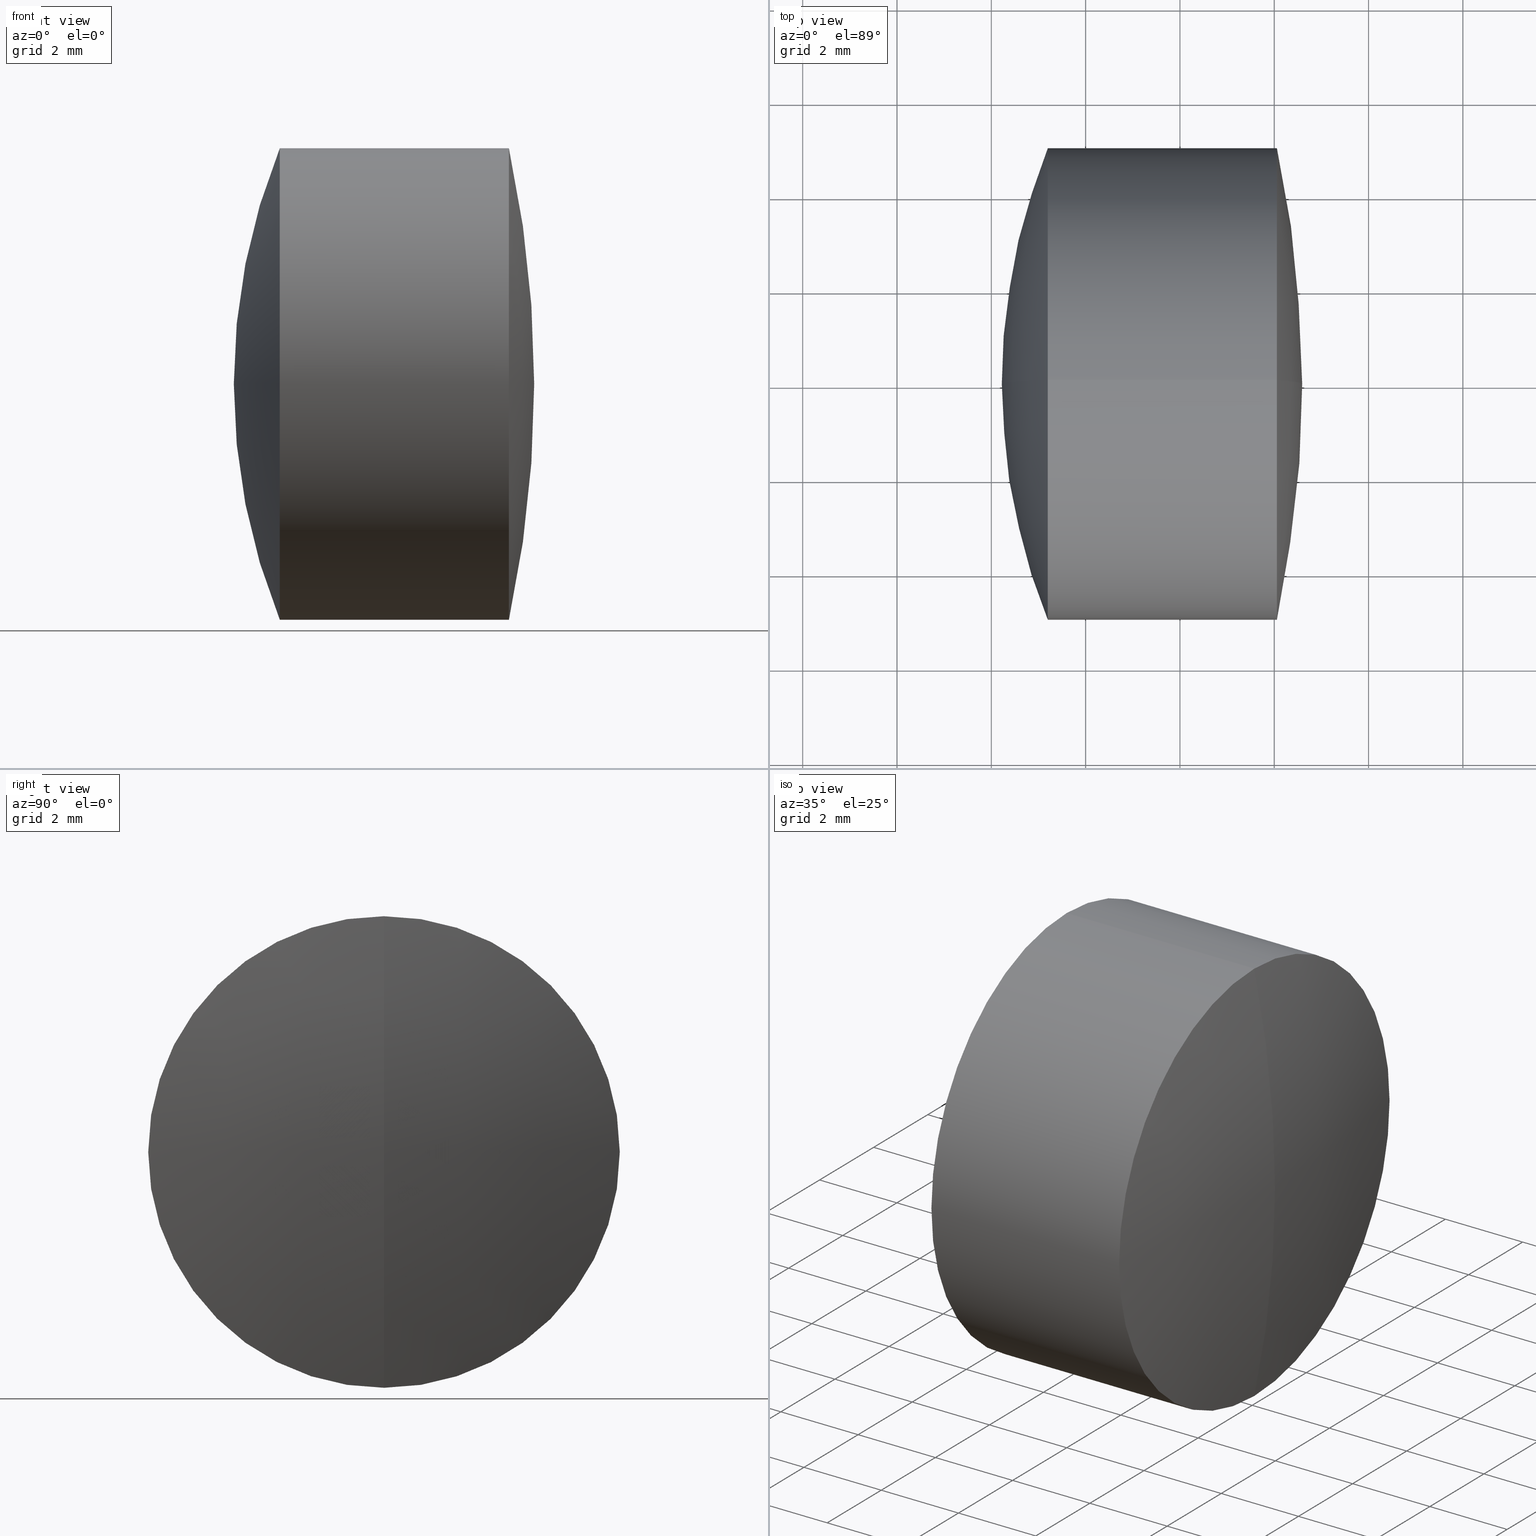
[diagram: canonical four-view strip — front | top / right | iso, engineering-drawing reading convention]
A machine part, canonical four-view strip (front | top / right | iso — engineering-drawing reading convention). The complete STEP part file that produces these views, byte-faithful:
ISO-10303-21;
HEADER;
FILE_DESCRIPTION (( 'STEP AP214' ),
    '1' );
FILE_NAME ('145019.STEP',
    '2019-05-10T06:04:11',
    ( 'user' ),
    ( '΢���й�' ),
    'SwSTEP 2.0',
    'SolidWorks 2016',
    '' );
FILE_SCHEMA (( 'AUTOMOTIVE_DESIGN' ));
ENDSEC;

DATA;
#1 =( NAMED_UNIT ( * ) PLANE_ANGLE_UNIT ( ) SI_UNIT ( $, .RADIAN. ) );
#2 = ADVANCED_FACE ( 'NONE', ( #121 ), #147, .T. ) ;
#3 = CIRCLE ( 'NONE', #311, 5.000000000000000000 ) ;
#4 = ORIENTED_EDGE ( 'NONE', *, *, #92, .F. ) ;
#5 = DIRECTION ( 'NONE',  ( -1.000000000000000000, -0.0000000000000000000, -0.0000000000000000000 ) ) ;
#6 = ADVANCED_FACE ( 'NONE', ( #63 ), #319, .T. ) ;
#7 = DIRECTION ( 'NONE',  ( 0.0000000000000000000, 0.0000000000000000000, 1.000000000000000000 ) ) ;
#8 = SPHERICAL_SURFACE ( 'NONE', #330, 13.30299999999999900 ) ;
#9 = AXIS2_PLACEMENT_3D ( 'NONE', #10, #87, #328 ) ;
#10 = CARTESIAN_POINT ( 'NONE',  ( -18.99342932123091600, 0.0000000000000000000, 0.0000000000000000000 ) ) ;
#11 = ORIENTED_EDGE ( 'NONE', *, *, #317, .T. ) ;
#12 = COLOUR_RGB ( '',1.000000000000000000, 1.000000000000000000, 1.000000000000000000 ) ;
#13 = MANIFOLD_SOLID_BREP ( '��ת1', #125 ) ;
#14 = DIRECTION ( 'NONE',  ( 0.0000000000000000000, 0.0000000000000000000, 1.000000000000000000 ) ) ;
#15 = EDGE_LOOP ( 'NONE', ( #143, #118, #308 ) ) ;
#16 = CARTESIAN_POINT ( 'NONE',  ( 2.192570678769084800, 0.0000000000000000000, 6.492242437520216100E-016 ) ) ;
#17 = ORIENTED_EDGE ( 'NONE', *, *, #332, .F. ) ;
#18 = LINE ( 'NONE', #128, #74 ) ;
#19 = ORIENTED_EDGE ( 'NONE', *, *, #345, .F. ) ;
#20 = EDGE_CURVE ( 'NONE', #73, #54, #338, .T. ) ;
#21 = ADVANCED_FACE ( 'NONE', ( #253 ), #104, .F. ) ;
#22 = ORIENTED_EDGE ( 'NONE', *, *, #145, .F. ) ;
#23 = CARTESIAN_POINT ( 'NONE',  ( -18.99342932123091600, 0.0000000000000000000, 0.0000000000000000000 ) ) ;
#24 = VERTEX_POINT ( 'NONE', #16 ) ;
#25 =( GEOMETRIC_REPRESENTATION_CONTEXT ( 3 ) GLOBAL_UNCERTAINTY_ASSIGNED_CONTEXT ( ( #267 ) ) GLOBAL_UNIT_ASSIGNED_CONTEXT ( ( #47, #75, #130 ) ) REPRESENTATION_CONTEXT ( 'NONE', 'WORKASPACE' ) );
#26 = CIRCLE ( 'NONE', #223, 4.999999999999997300 ) ;
#27 = CARTESIAN_POINT ( 'NONE',  ( 0.6409706677806791300, 0.0000000000000000000, 0.0000000000000000000 ) ) ;
#28 = CARTESIAN_POINT ( 'NONE',  ( -0.5519199926577972300, 0.0000000000000000000, 0.0000000000000000000 ) ) ;
#29 = STYLED_ITEM ( 'NONE', ( #190 ), #13 ) ;
#30 = UNCERTAINTY_MEASURE_WITH_UNIT (LENGTH_MEASURE( 1.000000000000000100E-005 ), #154, 'distance_accuracy_value', 'NONE');
#31 = CARTESIAN_POINT ( 'NONE',  ( -0.8020328596320403000, 0.0000000000000000000, 0.0000000000000000000 ) ) ;
#32 = ORIENTED_EDGE ( 'NONE', *, *, #113, .T. ) ;
#33 = CIRCLE ( 'NONE', #228, 13.30299999999999900 ) ;
#34 = DIRECTION ( 'NONE',  ( 0.0000000000000000000, 0.0000000000000000000, -1.000000000000000000 ) ) ;
#35 = CARTESIAN_POINT ( 'NONE',  ( -0.8020328596320411800, 6.123233995736764300E-016, -4.999999999999999100 ) ) ;
#36 = VERTEX_POINT ( 'NONE', #93 ) ;
#37 = EDGE_CURVE ( 'NONE', #24, #296, #290, .T. ) ;
#38 = SPHERICAL_SURFACE ( 'NONE', #252, 8.832000000000000700 ) ;
#39 = ORIENTED_EDGE ( 'NONE', *, *, #113, .F. ) ;
#40 = PRESENTATION_LAYER_ASSIGNMENT (  '', '', ( #29 ) ) ;
#41 =( NAMED_UNIT ( * ) PLANE_ANGLE_UNIT ( ) SI_UNIT ( $, .RADIAN. ) );
#42 = ADVANCED_FACE ( 'NONE', ( #114 ), #166, .T. ) ;
#43 = VERTEX_POINT ( 'NONE', #213 ) ;
#44 = DIRECTION ( 'NONE',  ( 0.0000000000000000000, -1.224646799147353200E-016, 1.000000000000000000 ) ) ;
#45 = EDGE_LOOP ( 'NONE', ( #80, #182, #167, #17 ) ) ;
#46 = CARTESIAN_POINT ( 'NONE',  ( 4.056503346783539000, 0.0000000000000000000, 0.0000000000000000000 ) ) ;
#47 =( LENGTH_UNIT ( ) NAMED_UNIT ( * ) SI_UNIT ( .MILLI., .METRE. ) );
#48 =( NAMED_UNIT ( * ) SI_UNIT ( $, .STERADIAN. ) SOLID_ANGLE_UNIT ( ) );
#49 = DIRECTION ( 'NONE',  ( 0.0000000000000000000, 0.0000000000000000000, 1.000000000000000000 ) ) ;
#50 = DIRECTION ( 'NONE',  ( 0.0000000000000000000, 1.000000000000000000, 0.0000000000000000000 ) ) ;
#51 = CARTESIAN_POINT ( 'NONE',  ( -9.702612178336682500, 0.0000000000000000000, 0.0000000000000000000 ) ) ;
#52 = CYLINDRICAL_SURFACE ( 'NONE', #275, 4.999999999999998200 ) ;
#53 = DIRECTION ( 'NONE',  ( 0.0000000000000000000, -1.224646799147353200E-016, 1.000000000000000000 ) ) ;
#54 = VERTEX_POINT ( 'NONE', #35 ) ;
#55 = DIRECTION ( 'NONE',  ( 0.0000000000000000000, 0.0000000000000000000, 1.000000000000000000 ) ) ;
#56 = ADVANCED_FACE ( 'NONE', ( #241 ), #84, .T. ) ;
#57 = CARTESIAN_POINT ( 'NONE',  ( 11.52557067876908700, 0.0000000000000000000, -4.606281676806371000E-016 ) ) ;
#58 = AXIS2_PLACEMENT_3D ( 'NONE', #60, #116, #14 ) ;
#59 = CARTESIAN_POINT ( 'NONE',  ( -6.639429321230914600, 0.0000000000000000000, 1.084202172485504400E-016 ) ) ;
#60 = CARTESIAN_POINT ( 'NONE',  ( -6.639429321230914600, 0.0000000000000000000, 1.084202172485504400E-016 ) ) ;
#61 = FACE_OUTER_BOUND ( 'NONE', #155, .T. ) ;
#62 = EDGE_LOOP ( 'NONE', ( #39, #96, #247 ) ) ;
#63 = FACE_OUTER_BOUND ( 'NONE', #142, .T. ) ;
#64 = VECTOR ( 'NONE', #289, 1000.000000000000000 ) ;
#65 = ORIENTED_EDGE ( 'NONE', *, *, #170, .F. ) ;
#66 = PRESENTATION_STYLE_ASSIGNMENT (( #321 ) ) ;
#67 = CIRCLE ( 'NONE', #286, 5.000000000000000000 ) ;
#68 = DIRECTION ( 'NONE',  ( 0.0000000000000000000, 0.0000000000000000000, 1.000000000000000000 ) ) ;
#69 =( GEOMETRIC_REPRESENTATION_CONTEXT ( 3 ) GLOBAL_UNCERTAINTY_ASSIGNED_CONTEXT ( ( #79 ) ) GLOBAL_UNIT_ASSIGNED_CONTEXT ( ( #270, #41, #208 ) ) REPRESENTATION_CONTEXT ( 'NONE', 'WORKASPACE' ) );
#70 = DIRECTION ( 'NONE',  ( 0.0000000000000000000, 0.0000000000000000000, 1.000000000000000000 ) ) ;
#71 = CARTESIAN_POINT ( 'NONE',  ( 11.52557067876908700, 0.0000000000000000000, -4.606281676806371000E-016 ) ) ;
#72 = AXIS2_PLACEMENT_3D ( 'NONE', #331, #140, #306 ) ;
#73 = VERTEX_POINT ( 'NONE', #303 ) ;
#74 = VECTOR ( 'NONE', #230, 1000.000000000000000 ) ;
#75 =( NAMED_UNIT ( * ) PLANE_ANGLE_UNIT ( ) SI_UNIT ( $, .RADIAN. ) );
#76 = APPLICATION_PROTOCOL_DEFINITION ( 'draft international standard', 'automotive_design', 1998, #105 ) ;
#77 = PRODUCT_CONTEXT ( 'NONE', #105, 'mechanical' ) ;
#78 = DIRECTION ( 'NONE',  ( 0.0000000000000000000, 0.0000000000000000000, 1.000000000000000000 ) ) ;
#79 = UNCERTAINTY_MEASURE_WITH_UNIT (LENGTH_MEASURE( 1.000000000000000100E-005 ), #270, 'distance_accuracy_value', 'NONE');
#80 = ORIENTED_EDGE ( 'NONE', *, *, #301, .F. ) ;
#81 = CARTESIAN_POINT ( 'NONE',  ( 4.592570678769083000, 0.0000000000000000000, 1.444225970234473700E-015 ) ) ;
#82 = CARTESIAN_POINT ( 'NONE',  ( -6.639429321230914600, 0.0000000000000000000, 1.084202172485504400E-016 ) ) ;
#83 = DIRECTION ( 'NONE',  ( 0.0000000000000000000, -1.000000000000000000, 0.0000000000000000000 ) ) ;
#84 = SPHERICAL_SURFACE ( 'NONE', #9, 23.58599999999999900 ) ;
#85 = EDGE_LOOP ( 'NONE', ( #149, #236, #88 ) ) ;
#86 = FILL_AREA_STYLE_COLOUR ( '', #168 ) ;
#87 = DIRECTION ( 'NONE',  ( 0.0000000000000000000, 1.000000000000000000, 0.0000000000000000000 ) ) ;
#88 = ORIENTED_EDGE ( 'NONE', *, *, #332, .T. ) ;
#89 = CYLINDRICAL_SURFACE ( 'NONE', #235, 5.000000000000000000 ) ;
#90 = LINE ( 'NONE', #171, #64 ) ;
#91 = ORIENTED_EDGE ( 'NONE', *, *, #145, .T. ) ;
#92 = EDGE_CURVE ( 'NONE', #224, #285, #136, .T. ) ;
#93 = CARTESIAN_POINT ( 'NONE',  ( 2.192570678769086600, 0.0000000000000000000, 6.492242437520217000E-016 ) ) ;
#94 = ADVANCED_FACE ( 'NONE', ( #309 ), #8, .T. ) ;
#95 = CYLINDRICAL_SURFACE ( 'NONE', #239, 4.999999999999998200 ) ;
#96 = ORIENTED_EDGE ( 'NONE', *, *, #153, .T. ) ;
#97 = DIRECTION ( 'NONE',  ( 0.0000000000000000000, 0.0000000000000000000, 1.000000000000000000 ) ) ;
#98 = DIRECTION ( 'NONE',  ( -1.000000000000000000, -0.0000000000000000000, -0.0000000000000000000 ) ) ;
#99 = DIRECTION ( 'NONE',  ( -1.000000000000000000, -0.0000000000000000000, -0.0000000000000000000 ) ) ;
#100 = CIRCLE ( 'NONE', #246, 5.000000000000000000 ) ;
#101 = ORIENTED_EDGE ( 'NONE', *, *, #170, .T. ) ;
#102 = DIRECTION ( 'NONE',  ( 0.0000000000000000000, -1.224646799147353200E-016, 1.000000000000000000 ) ) ;
#103 = FILL_AREA_STYLE_COLOUR ( '', #12 ) ;
#104 = SPHERICAL_SURFACE ( 'NONE', #305, 8.831999999999999000 ) ;
#105 = APPLICATION_CONTEXT ( 'automotive_design' ) ;
#106 = APPLICATION_PROTOCOL_DEFINITION ( 'draft international standard', 'automotive_design', 1998, #266 ) ;
#107 = ORIENTED_EDGE ( 'NONE', *, *, #325, .F. ) ;
#108 = SURFACE_STYLE_USAGE ( .BOTH. , #297 ) ;
#109 = SURFACE_STYLE_FILL_AREA ( #133 ) ;
#110 = AXIS2_PLACEMENT_3D ( 'NONE', #216, #248, #337 ) ;
#111 = FACE_OUTER_BOUND ( 'NONE', #85, .T. ) ;
#112 = DIRECTION ( 'NONE',  ( 0.0000000000000000000, 0.0000000000000000000, 1.000000000000000000 ) ) ;
#113 = EDGE_CURVE ( 'NONE', #36, #299, #259, .T. ) ;
#114 = FACE_OUTER_BOUND ( 'NONE', #342, .T. ) ;
#115 = CIRCLE ( 'NONE', #198, 23.58599999999999900 ) ;
#116 = DIRECTION ( 'NONE',  ( 0.0000000000000000000, 1.000000000000000000, 0.0000000000000000000 ) ) ;
#117 = CIRCLE ( 'NONE', #254, 23.58599999999999900 ) ;
#118 = ORIENTED_EDGE ( 'NONE', *, *, #345, .T. ) ;
#119 = DIRECTION ( 'NONE',  ( -1.000000000000000000, -0.0000000000000000000, -0.0000000000000000000 ) ) ;
#120 = EDGE_CURVE ( 'NONE', #224, #54, #3, .T. ) ;
#121 = FACE_OUTER_BOUND ( 'NONE', #62, .T. ) ;
#122 = DIRECTION ( 'NONE',  ( 0.0000000000000000000, 0.0000000000000000000, 1.000000000000000000 ) ) ;
#123 = SPHERICAL_SURFACE ( 'NONE', #281, 23.58599999999999900 ) ;
#124 = DIRECTION ( 'NONE',  ( 0.0000000000000000000, 1.000000000000000000, 0.0000000000000000000 ) ) ;
#125 = CLOSED_SHELL ( 'NONE', ( #2, #42, #6, #94, #233, #195 ) ) ;
#126 = CARTESIAN_POINT ( 'NONE',  ( -1.777429321230912200, 0.0000000000000000000, 3.539456507722247700E-016 ) ) ;
#127 = CARTESIAN_POINT ( 'NONE',  ( 4.056503346783539000, 0.0000000000000000000, 4.999999999999997300 ) ) ;
#128 = CARTESIAN_POINT ( 'NONE',  ( -0.5519199926577972300, 0.0000000000000000000, 4.999999999999998200 ) ) ;
#129 = VECTOR ( 'NONE', #215, 1000.000000000000000 ) ;
#130 =( NAMED_UNIT ( * ) SI_UNIT ( $, .STERADIAN. ) SOLID_ANGLE_UNIT ( ) );
#131 = SURFACE_SIDE_STYLE ('',( #138 ) ) ;
#132 = CARTESIAN_POINT ( 'NONE',  ( -6.639429321230914600, 0.0000000000000000000, 1.084202172485504400E-016 ) ) ;
#133 = FILL_AREA_STYLE ('',( #324 ) ) ;
#134 = ORIENTED_EDGE ( 'NONE', *, *, #92, .T. ) ;
#135 = CARTESIAN_POINT ( 'NONE',  ( 0.6409706677806800100, 0.0000000000000000000, 0.0000000000000000000 ) ) ;
#136 = CIRCLE ( 'NONE', #334, 13.30299999999999900 ) ;
#137 = ORIENTED_EDGE ( 'NONE', *, *, #343, .F. ) ;
#138 = SURFACE_STYLE_FILL_AREA ( #294 ) ;
#139 = UNCERTAINTY_MEASURE_WITH_UNIT (LENGTH_MEASURE( 1.000000000000000100E-005 ), #318, 'distance_accuracy_value', 'NONE');
#140 = DIRECTION ( 'NONE',  ( 0.0000000000000000000, 1.000000000000000000, 0.0000000000000000000 ) ) ;
#141 = EDGE_LOOP ( 'NONE', ( #107, #283, #134 ) ) ;
#142 = EDGE_LOOP ( 'NONE', ( #261, #212, #4 ) ) ;
#143 = ORIENTED_EDGE ( 'NONE', *, *, #237, .F. ) ;
#144 = PRODUCT_RELATED_PRODUCT_CATEGORY ( 'part', '', ( #185 ) ) ;
#145 = EDGE_CURVE ( 'NONE', #296, #43, #217, .T. ) ;
#146 = CARTESIAN_POINT ( 'NONE',  ( -6.639429321230914600, 0.0000000000000000000, 1.084202172485504400E-016 ) ) ;
#147 = SPHERICAL_SURFACE ( 'NONE', #58, 8.832000000000000700 ) ;
#148 = CARTESIAN_POINT ( 'NONE',  ( 4.056503346783539000, 6.123233995736764300E-016, -4.999999999999997300 ) ) ;
#149 = ORIENTED_EDGE ( 'NONE', *, *, #37, .F. ) ;
#150 = DIRECTION ( 'NONE',  ( -1.000000000000000000, -0.0000000000000000000, -0.0000000000000000000 ) ) ;
#151 = PRODUCT_DEFINITION_FORMATION_WITH_SPECIFIED_SOURCE ( '�κ�', '', #185, .NOT_KNOWN. ) ;
#152 = CARTESIAN_POINT ( 'NONE',  ( -18.99342932123091600, 0.0000000000000000000, 0.0000000000000000000 ) ) ;
#153 = EDGE_CURVE ( 'NONE', #36, #73, #196, .T. ) ;
#154 =( LENGTH_UNIT ( ) NAMED_UNIT ( * ) SI_UNIT ( .MILLI., .METRE. ) );
#155 = EDGE_LOOP ( 'NONE', ( #336, #251, #22, #137 ) ) ;
#156 = DIRECTION ( 'NONE',  ( -1.000000000000000000, -0.0000000000000000000, -0.0000000000000000000 ) ) ;
#157 = ADVANCED_FACE ( 'NONE', ( #333 ), #123, .T. ) ;
#158 = CARTESIAN_POINT ( 'NONE',  ( -18.99342932123091600, 0.0000000000000000000, 0.0000000000000000000 ) ) ;
#159 = ADVANCED_FACE ( 'NONE', ( #61 ), #52, .T. ) ;
#160 = MANIFOLD_SOLID_BREP ( '��ת3', #255 ) ;
#161 = ORIENTED_EDGE ( 'NONE', *, *, #282, .F. ) ;
#162 = CARTESIAN_POINT ( 'NONE',  ( 11.52557067876908700, 0.0000000000000000000, -4.606281676806371000E-016 ) ) ;
#163 = LINE ( 'NONE', #201, #312 ) ;
#164 = AXIS2_PLACEMENT_3D ( 'NONE', #207, #49, #234 ) ;
#165 = CARTESIAN_POINT ( 'NONE',  ( -9.702612178336682500, 6.123233995736766300E-016, -5.000000000000000000 ) ) ;
#166 = CYLINDRICAL_SURFACE ( 'NONE', #339, 5.000000000000000000 ) ;
#167 = ORIENTED_EDGE ( 'NONE', *, *, #343, .T. ) ;
#168 = COLOUR_RGB ( '',1.000000000000000000, 1.000000000000000000, 1.000000000000000000 ) ;
#169 = ORIENTED_EDGE ( 'NONE', *, *, #202, .T. ) ;
#170 = EDGE_CURVE ( 'NONE', #73, #299, #67, .T. ) ;
#171 = CARTESIAN_POINT ( 'NONE',  ( -0.5519199926577972300, 6.123233995736764300E-016, -4.999999999999998200 ) ) ;
#172 = FACE_OUTER_BOUND ( 'NONE', #45, .T. ) ;
#173 = DIRECTION ( 'NONE',  ( 0.0000000000000000000, -1.224646799147353200E-016, 1.000000000000000000 ) ) ;
#174 =( GEOMETRIC_REPRESENTATION_CONTEXT ( 3 ) GLOBAL_UNCERTAINTY_ASSIGNED_CONTEXT ( ( #30 ) ) GLOBAL_UNIT_ASSIGNED_CONTEXT ( ( #154, #1, #181 ) ) REPRESENTATION_CONTEXT ( 'NONE', 'WORKASPACE' ) );
#175 = DIRECTION ( 'NONE',  ( -1.000000000000000000, -0.0000000000000000000, -0.0000000000000000000 ) ) ;
#176 = PRODUCT_DEFINITION ( 'δ֪', '', #151, #304 ) ;
#177 = SURFACE_SIDE_STYLE ('',( #329 ) ) ;
#178 = MECHANICAL_DESIGN_GEOMETRIC_PRESENTATION_REPRESENTATION (  '', ( #191 ), #174 ) ;
#179 = DIRECTION ( 'NONE',  ( 0.0000000000000000000, 0.0000000000000000000, -1.000000000000000000 ) ) ;
#180 = CIRCLE ( 'NONE', #210, 4.999999999999999100 ) ;
#181 =( NAMED_UNIT ( * ) SI_UNIT ( $, .STERADIAN. ) SOLID_ANGLE_UNIT ( ) );
#182 = ORIENTED_EDGE ( 'NONE', *, *, #277, .T. ) ;
#183 = DIRECTION ( 'NONE',  ( 0.0000000000000000000, 0.0000000000000000000, 1.000000000000000000 ) ) ;
#184 = FACE_OUTER_BOUND ( 'NONE', #292, .T. ) ;
#185 = PRODUCT ( '145019', '145019', '', ( #77 ) ) ;
#186 = DIRECTION ( 'NONE',  ( -1.000000000000000000, -0.0000000000000000000, -0.0000000000000000000 ) ) ;
#187 = ORIENTED_EDGE ( 'NONE', *, *, #37, .T. ) ;
#188 = DIRECTION ( 'NONE',  ( -1.000000000000000000, -0.0000000000000000000, -0.0000000000000000000 ) ) ;
#189 = DIRECTION ( 'NONE',  ( 0.0000000000000000000, 0.0000000000000000000, 1.000000000000000000 ) ) ;
#190 = PRESENTATION_STYLE_ASSIGNMENT (( #203 ) ) ;
#191 = STYLED_ITEM ( 'NONE', ( #66 ), #220 ) ;
#192 = AXIS2_PLACEMENT_3D ( 'NONE', #341, #124, #122 ) ;
#193 = CARTESIAN_POINT ( 'NONE',  ( -9.702612178336682500, 0.0000000000000000000, 0.0000000000000000000 ) ) ;
#194 = PRESENTATION_LAYER_ASSIGNMENT (  '', '', ( #191 ) ) ;
#195 = ADVANCED_FACE ( 'NONE', ( #315 ), #38, .T. ) ;
#196 = CIRCLE ( 'NONE', #291, 8.832000000000000700 ) ;
#197 = DIRECTION ( 'NONE',  ( -0.0000000000000000000, 1.000000000000000000, 1.224646799147353200E-016 ) ) ;
#198 = AXIS2_PLACEMENT_3D ( 'NONE', #152, #347, #179 ) ;
#199 = ORIENTED_EDGE ( 'NONE', *, *, #249, .F. ) ;
#200 = CARTESIAN_POINT ( 'NONE',  ( 0.6409706677806795700, 0.0000000000000000000, 4.999999999999997300 ) ) ;
#201 = CARTESIAN_POINT ( 'NONE',  ( -9.702612178336682500, 0.0000000000000000000, 5.000000000000000000 ) ) ;
#202 = EDGE_CURVE ( 'NONE', #299, #73, #250, .T. ) ;
#203 = SURFACE_STYLE_USAGE ( .BOTH. , #177 ) ;
#204 = SHAPE_DEFINITION_REPRESENTATION ( #232, #220 ) ;
#205 = ORIENTED_EDGE ( 'NONE', *, *, #120, .F. ) ;
#206 =( NAMED_UNIT ( * ) PLANE_ANGLE_UNIT ( ) SI_UNIT ( $, .RADIAN. ) );
#207 = CARTESIAN_POINT ( 'NONE',  ( 0.0000000000000000000, 0.0000000000000000000, 0.0000000000000000000 ) ) ;
#208 =( NAMED_UNIT ( * ) SI_UNIT ( $, .STERADIAN. ) SOLID_ANGLE_UNIT ( ) );
#209 = DIRECTION ( 'NONE',  ( 0.0000000000000000000, 0.0000000000000000000, 1.000000000000000000 ) ) ;
#210 = AXIS2_PLACEMENT_3D ( 'NONE', #245, #150, #346 ) ;
#211 = DIRECTION ( 'NONE',  ( 0.0000000000000000000, -1.000000000000000000, 0.0000000000000000000 ) ) ;
#212 = ORIENTED_EDGE ( 'NONE', *, *, #325, .T. ) ;
#213 = CARTESIAN_POINT ( 'NONE',  ( 0.6409706677806795700, 6.123233995736764300E-016, -4.999999999999997300 ) ) ;
#214 =( GEOMETRIC_REPRESENTATION_CONTEXT ( 3 ) GLOBAL_UNCERTAINTY_ASSIGNED_CONTEXT ( ( #139 ) ) GLOBAL_UNIT_ASSIGNED_CONTEXT ( ( #318, #206, #48 ) ) REPRESENTATION_CONTEXT ( 'NONE', 'WORKASPACE' ) );
#215 = DIRECTION ( 'NONE',  ( -1.000000000000000000, -0.0000000000000000000, -0.0000000000000000000 ) ) ;
#216 = CARTESIAN_POINT ( 'NONE',  ( -6.639429321230914600, 0.0000000000000000000, 1.084202172485504400E-016 ) ) ;
#217 = CIRCLE ( 'NONE', #314, 4.999999999999999100 ) ;
#218 = FILL_AREA_STYLE ('',( #86 ) ) ;
#219 = ORIENTED_EDGE ( 'NONE', *, *, #237, .T. ) ;
#220 = ADVANCED_BREP_SHAPE_REPRESENTATION ( '145019', ( #13, #160, #164 ), #214 ) ;
#221 = DIRECTION ( 'NONE',  ( 0.0000000000000000000, 0.0000000000000000000, 1.000000000000000000 ) ) ;
#222 = ORIENTED_EDGE ( 'NONE', *, *, #20, .T. ) ;
#223 = AXIS2_PLACEMENT_3D ( 'NONE', #46, #227, #70 ) ;
#224 = VERTEX_POINT ( 'NONE', #238 ) ;
#225 = CARTESIAN_POINT ( 'NONE',  ( -0.5519199926577972300, 0.0000000000000000000, 0.0000000000000000000 ) ) ;
#226 = AXIS2_PLACEMENT_3D ( 'NONE', #146, #344, #173 ) ;
#227 = DIRECTION ( 'NONE',  ( -1.000000000000000000, -0.0000000000000000000, -0.0000000000000000000 ) ) ;
#228 = AXIS2_PLACEMENT_3D ( 'NONE', #71, #263, #102 ) ;
#229 = VERTEX_POINT ( 'NONE', #81 ) ;
#230 = DIRECTION ( 'NONE',  ( -1.000000000000000000, -0.0000000000000000000, -0.0000000000000000000 ) ) ;
#231 = AXIS2_PLACEMENT_3D ( 'NONE', #260, #99, #288 ) ;
#232 = PRODUCT_DEFINITION_SHAPE ( 'NONE', 'NONE',  #176 ) ;
#233 = ADVANCED_FACE ( 'NONE', ( #184 ), #89, .T. ) ;
#234 = DIRECTION ( 'NONE',  ( 1.000000000000000000, 0.0000000000000000000, 0.0000000000000000000 ) ) ;
#235 = AXIS2_PLACEMENT_3D ( 'NONE', #51, #268, #97 ) ;
#236 = ORIENTED_EDGE ( 'NONE', *, *, #279, .T. ) ;
#237 = EDGE_CURVE ( 'NONE', #229, #310, #117, .T. ) ;
#238 = CARTESIAN_POINT ( 'NONE',  ( -0.8020328596320411800, 0.0000000000000000000, 4.999999999999999100 ) ) ;
#239 = AXIS2_PLACEMENT_3D ( 'NONE', #225, #5, #68 ) ;
#240 = DIRECTION ( 'NONE',  ( -0.0000000000000000000, 1.000000000000000000, 1.224646799147353200E-016 ) ) ;
#241 = FACE_OUTER_BOUND ( 'NONE', #313, .T. ) ;
#242 = DIRECTION ( 'NONE',  ( 0.0000000000000000000, 0.0000000000000000000, -1.000000000000000000 ) ) ;
#243 = EDGE_LOOP ( 'NONE', ( #302, #187, #91 ) ) ;
#244 = DIRECTION ( 'NONE',  ( 0.0000000000000000000, 1.000000000000000000, 0.0000000000000000000 ) ) ;
#245 = CARTESIAN_POINT ( 'NONE',  ( 0.6409706677806800100, 0.0000000000000000000, 0.0000000000000000000 ) ) ;
#246 = AXIS2_PLACEMENT_3D ( 'NONE', #258, #98, #287 ) ;
#247 = ORIENTED_EDGE ( 'NONE', *, *, #202, .F. ) ;
#248 = DIRECTION ( 'NONE',  ( 0.0000000000000000000, -1.000000000000000000, 0.0000000000000000000 ) ) ;
#249 = EDGE_CURVE ( 'NONE', #54, #224, #100, .T. ) ;
#250 = CIRCLE ( 'NONE', #293, 5.000000000000000000 ) ;
#251 = ORIENTED_EDGE ( 'NONE', *, *, #301, .T. ) ;
#252 = AXIS2_PLACEMENT_3D ( 'NONE', #132, #50, #183 ) ;
#253 = FACE_OUTER_BOUND ( 'NONE', #243, .T. ) ;
#254 = AXIS2_PLACEMENT_3D ( 'NONE', #23, #197, #44 ) ;
#255 = CLOSED_SHELL ( 'NONE', ( #56, #159, #271, #21, #256, #157 ) ) ;
#256 = ADVANCED_FACE ( 'NONE', ( #172 ), #95, .T. ) ;
#257 = DIRECTION ( 'NONE',  ( -1.000000000000000000, -0.0000000000000000000, -0.0000000000000000000 ) ) ;
#258 = CARTESIAN_POINT ( 'NONE',  ( -0.8020328596320403000, 0.0000000000000000000, 0.0000000000000000000 ) ) ;
#259 = CIRCLE ( 'NONE', #327, 8.832000000000000700 ) ;
#260 = CARTESIAN_POINT ( 'NONE',  ( 4.056503346783539000, 0.0000000000000000000, 0.0000000000000000000 ) ) ;
#261 = ORIENTED_EDGE ( 'NONE', *, *, #120, .T. ) ;
#262 = CARTESIAN_POINT ( 'NONE',  ( 0.6409706677806791300, 0.0000000000000000000, 5.000000000000000000 ) ) ;
#263 = DIRECTION ( 'NONE',  ( -0.0000000000000000000, 1.000000000000000000, 1.224646799147353200E-016 ) ) ;
#264 = PRESENTATION_LAYER_ASSIGNMENT (  '', '', ( #276 ) ) ;
#265 = MECHANICAL_DESIGN_GEOMETRIC_PRESENTATION_REPRESENTATION (  '', ( #276 ), #69 ) ;
#266 = APPLICATION_CONTEXT ( 'automotive_design' ) ;
#267 = UNCERTAINTY_MEASURE_WITH_UNIT (LENGTH_MEASURE( 1.000000000000000100E-005 ), #47, 'distance_accuracy_value', 'NONE');
#268 = DIRECTION ( 'NONE',  ( -1.000000000000000000, -0.0000000000000000000, -0.0000000000000000000 ) ) ;
#269 = PRESENTATION_STYLE_ASSIGNMENT (( #108 ) ) ;
#270 =( LENGTH_UNIT ( ) NAMED_UNIT ( * ) SI_UNIT ( .MILLI., .METRE. ) );
#271 = ADVANCED_FACE ( 'NONE', ( #111 ), #322, .F. ) ;
#272 = ORIENTED_EDGE ( 'NONE', *, *, #20, .F. ) ;
#273 = DIRECTION ( 'NONE',  ( 0.0000000000000000000, 1.000000000000000000, 0.0000000000000000000 ) ) ;
#274 = CARTESIAN_POINT ( 'NONE',  ( -6.639429321230914600, 0.0000000000000000000, 1.084202172485504400E-016 ) ) ;
#275 = AXIS2_PLACEMENT_3D ( 'NONE', #28, #186, #300 ) ;
#276 = STYLED_ITEM ( 'NONE', ( #269 ), #160 ) ;
#277 = EDGE_CURVE ( 'NONE', #310, #340, #335, .T. ) ;
#278 = COLOUR_RGB ( '',1.000000000000000000, 1.000000000000000000, 1.000000000000000000 ) ;
#279 = EDGE_CURVE ( 'NONE', #24, #43, #307, .T. ) ;
#280 = EDGE_LOOP ( 'NONE', ( #316, #32, #65 ) ) ;
#281 = AXIS2_PLACEMENT_3D ( 'NONE', #158, #273, #209 ) ;
#282 = EDGE_CURVE ( 'NONE', #340, #310, #26, .T. ) ;
#283 = ORIENTED_EDGE ( 'NONE', *, *, #249, .T. ) ;
#284 = DIRECTION ( 'NONE',  ( 0.0000000000000000000, 1.000000000000000000, 0.0000000000000000000 ) ) ;
#285 = VERTEX_POINT ( 'NONE', #126 ) ;
#286 = AXIS2_PLACEMENT_3D ( 'NONE', #295, #156, #323 ) ;
#287 = DIRECTION ( 'NONE',  ( 0.0000000000000000000, 0.0000000000000000000, 1.000000000000000000 ) ) ;
#288 = DIRECTION ( 'NONE',  ( 0.0000000000000000000, 0.0000000000000000000, 1.000000000000000000 ) ) ;
#289 = DIRECTION ( 'NONE',  ( -1.000000000000000000, -0.0000000000000000000, -0.0000000000000000000 ) ) ;
#290 = CIRCLE ( 'NONE', #110, 8.831999999999999000 ) ;
#291 = AXIS2_PLACEMENT_3D ( 'NONE', #82, #240, #53 ) ;
#292 = EDGE_LOOP ( 'NONE', ( #272, #101, #11, #199 ) ) ;
#293 = AXIS2_PLACEMENT_3D ( 'NONE', #27, #257, #78 ) ;
#294 = FILL_AREA_STYLE ('',( #103 ) ) ;
#295 = CARTESIAN_POINT ( 'NONE',  ( 0.6409706677806791300, 0.0000000000000000000, 0.0000000000000000000 ) ) ;
#296 = VERTEX_POINT ( 'NONE', #200 ) ;
#297 = SURFACE_SIDE_STYLE ('',( #109 ) ) ;
#298 = DIRECTION ( 'NONE',  ( -1.000000000000000000, -0.0000000000000000000, -0.0000000000000000000 ) ) ;
#299 = VERTEX_POINT ( 'NONE', #262 ) ;
#300 = DIRECTION ( 'NONE',  ( 0.0000000000000000000, 0.0000000000000000000, 1.000000000000000000 ) ) ;
#301 = EDGE_CURVE ( 'NONE', #310, #43, #90, .T. ) ;
#302 = ORIENTED_EDGE ( 'NONE', *, *, #279, .F. ) ;
#303 = CARTESIAN_POINT ( 'NONE',  ( 0.6409706677806791300, 6.123233995736766300E-016, -5.000000000000000000 ) ) ;
#304 = PRODUCT_DEFINITION_CONTEXT ( 'detailed design', #266, 'design' ) ;
#305 = AXIS2_PLACEMENT_3D ( 'NONE', #59, #284, #55 ) ;
#306 = DIRECTION ( 'NONE',  ( 0.0000000000000000000, 0.0000000000000000000, 1.000000000000000000 ) ) ;
#307 = CIRCLE ( 'NONE', #226, 8.831999999999999000 ) ;
#308 = ORIENTED_EDGE ( 'NONE', *, *, #277, .F. ) ;
#309 = FACE_OUTER_BOUND ( 'NONE', #141, .T. ) ;
#310 = VERTEX_POINT ( 'NONE', #148 ) ;
#311 = AXIS2_PLACEMENT_3D ( 'NONE', #31, #188, #7 ) ;
#312 = VECTOR ( 'NONE', #175, 1000.000000000000000 ) ;
#313 = EDGE_LOOP ( 'NONE', ( #19, #219, #161 ) ) ;
#314 = AXIS2_PLACEMENT_3D ( 'NONE', #135, #298, #112 ) ;
#315 = FACE_OUTER_BOUND ( 'NONE', #280, .T. ) ;
#316 = ORIENTED_EDGE ( 'NONE', *, *, #153, .F. ) ;
#317 = EDGE_CURVE ( 'NONE', #299, #224, #163, .T. ) ;
#318 =( LENGTH_UNIT ( ) NAMED_UNIT ( * ) SI_UNIT ( .MILLI., .METRE. ) );
#319 = SPHERICAL_SURFACE ( 'NONE', #72, 13.30299999999999900 ) ;
#320 = MECHANICAL_DESIGN_GEOMETRIC_PRESENTATION_REPRESENTATION (  '', ( #29 ), #25 ) ;
#321 = SURFACE_STYLE_USAGE ( .BOTH. , #131 ) ;
#322 = SPHERICAL_SURFACE ( 'NONE', #192, 8.831999999999999000 ) ;
#323 = DIRECTION ( 'NONE',  ( 0.0000000000000000000, 0.0000000000000000000, 1.000000000000000000 ) ) ;
#324 = FILL_AREA_STYLE_COLOUR ( '', #278 ) ;
#325 = EDGE_CURVE ( 'NONE', #54, #285, #33, .T. ) ;
#326 = ORIENTED_EDGE ( 'NONE', *, *, #317, .F. ) ;
#327 = AXIS2_PLACEMENT_3D ( 'NONE', #274, #83, #242 ) ;
#328 = DIRECTION ( 'NONE',  ( 0.0000000000000000000, 0.0000000000000000000, 1.000000000000000000 ) ) ;
#329 = SURFACE_STYLE_FILL_AREA ( #218 ) ;
#330 = AXIS2_PLACEMENT_3D ( 'NONE', #162, #244, #189 ) ;
#331 = CARTESIAN_POINT ( 'NONE',  ( 11.52557067876908700, 0.0000000000000000000, -4.606281676806371000E-016 ) ) ;
#332 = EDGE_CURVE ( 'NONE', #43, #296, #180, .T. ) ;
#333 = FACE_OUTER_BOUND ( 'NONE', #15, .T. ) ;
#334 = AXIS2_PLACEMENT_3D ( 'NONE', #57, #211, #34 ) ;
#335 = CIRCLE ( 'NONE', #231, 4.999999999999997300 ) ;
#336 = ORIENTED_EDGE ( 'NONE', *, *, #282, .T. ) ;
#337 = DIRECTION ( 'NONE',  ( 0.0000000000000000000, 0.0000000000000000000, -1.000000000000000000 ) ) ;
#338 = LINE ( 'NONE', #165, #129 ) ;
#339 = AXIS2_PLACEMENT_3D ( 'NONE', #193, #119, #221 ) ;
#340 = VERTEX_POINT ( 'NONE', #127 ) ;
#341 = CARTESIAN_POINT ( 'NONE',  ( -6.639429321230914600, 0.0000000000000000000, 1.084202172485504400E-016 ) ) ;
#342 = EDGE_LOOP ( 'NONE', ( #169, #222, #205, #326 ) ) ;
#343 = EDGE_CURVE ( 'NONE', #340, #296, #18, .T. ) ;
#344 = DIRECTION ( 'NONE',  ( -0.0000000000000000000, 1.000000000000000000, 1.224646799147353200E-016 ) ) ;
#345 = EDGE_CURVE ( 'NONE', #229, #340, #115, .T. ) ;
#346 = DIRECTION ( 'NONE',  ( 0.0000000000000000000, 0.0000000000000000000, 1.000000000000000000 ) ) ;
#347 = DIRECTION ( 'NONE',  ( 0.0000000000000000000, -1.000000000000000000, 0.0000000000000000000 ) ) ;
ENDSEC;
END-ISO-10303-21;
